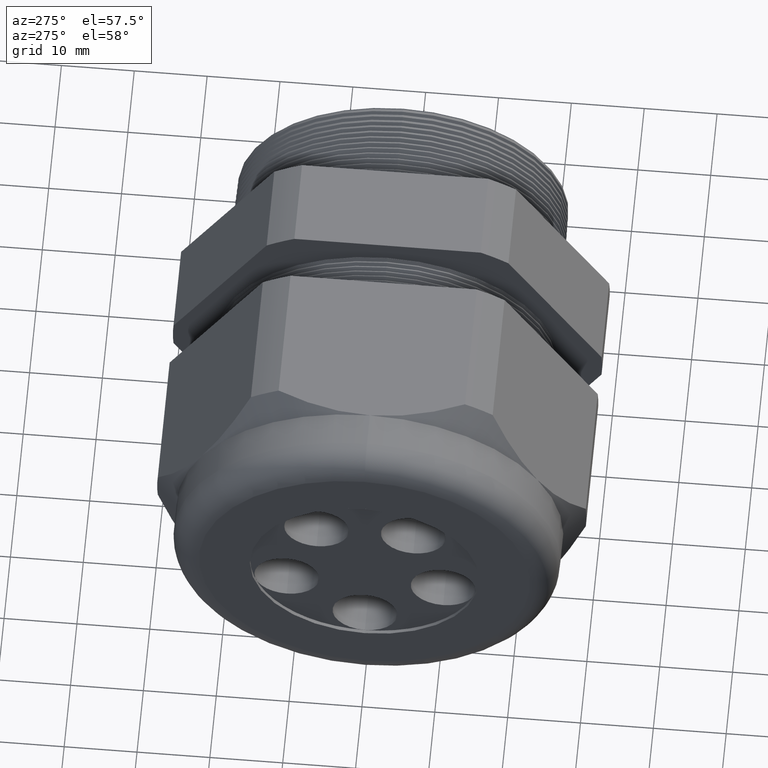
[diagram: clean part render]
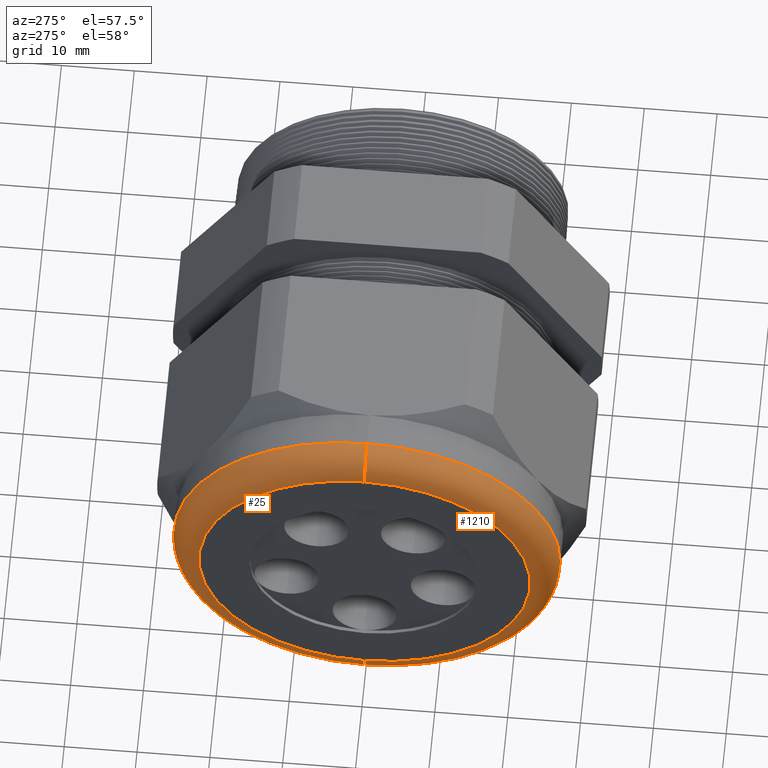
[diagram: same view with one multi-face feature highlighted, each face labeled with its STEP entity id]
A machine part, auxiliary view. The highlighted faces form ONE feature: a constant-radius fillet chain: 2 tangent blend faces with common blend radius 3.81 mm. The faces share edges in the B-rep.
Their STEP definitions:
[1] entity #25 (Torus):
#1 = VERTEX_POINT ( 'NONE', #1517 ) ;
#2 = ORIENTED_EDGE ( 'NONE', *, *, #6, .F. ) ;
#3 = ORIENTED_EDGE ( 'NONE', *, *, #5, .T. ) ;
#5 = EDGE_CURVE ( 'NONE', #7, #8, #1582, .T. ) ;
#6 = EDGE_CURVE ( 'NONE', #7, #11, #1577, .T. ) ;
#7 = VERTEX_POINT ( 'NONE', #1572 ) ;
#8 = VERTEX_POINT ( 'NONE', #1571 ) ;
#9 = ORIENTED_EDGE ( 'NONE', *, *, #17, .F. ) ;
#11 = VERTEX_POINT ( 'NONE', #1570 ) ;
#17 = EDGE_CURVE ( 'NONE', #1, #8, #1554, .T. ) ;
#21 = EDGE_LOOP ( 'NONE', ( #2, #3, #9, #42 ) ) ;
#25 = ADVANCED_FACE ( 'NONE', ( #1602 ), #1601, .T. ) ;
#41 = EDGE_CURVE ( 'NONE', #11, #1, #1629, .T. ) ;
#42 = ORIENTED_EDGE ( 'NONE', *, *, #41, .F. ) ;
#1517 = CARTESIAN_POINT ( 'NONE',  ( -2.199999999999999300, 0.0000000000000000000, 0.8949999999999999100 ) ) ;
#1551 = DIRECTION ( 'NONE',  ( -1.000000000000000000, 0.0000000000000000000, 0.0000000000000000000 ) ) ;
#1552 = CARTESIAN_POINT ( 'NONE',  ( -2.199999999999999300, 0.0000000000000000000, 0.0000000000000000000 ) ) ;
#1553 = AXIS2_PLACEMENT_3D ( 'NONE', #1552, #1551, #1612 ) ;
#1554 = CIRCLE ( 'NONE', #1553, 0.8949999999999999100 ) ;
#1570 = CARTESIAN_POINT ( 'NONE',  ( -2.049999999999999400, 1.279755905108984100E-016, 1.044999999999999900 ) ) ;
#1571 = CARTESIAN_POINT ( 'NONE',  ( -2.199999999999999300, 1.187907395172932400E-016, -0.8949999999999999100 ) ) ;
#1572 = CARTESIAN_POINT ( 'NONE',  ( -2.049999999999999400, 0.0000000000000000000, -1.044999999999999900 ) ) ;
#1573 = DIRECTION ( 'NONE',  ( 0.0000000000000000000, 0.0000000000000000000, 1.000000000000000000 ) ) ;
#1574 = DIRECTION ( 'NONE',  ( 1.000000000000000000, 0.0000000000000000000, 0.0000000000000000000 ) ) ;
#1575 = CARTESIAN_POINT ( 'NONE',  ( -2.049999999999999400, 0.0000000000000000000, 0.0000000000000000000 ) ) ;
#1576 = AXIS2_PLACEMENT_3D ( 'NONE', #1575, #1574, #1573 ) ;
#1577 = CIRCLE ( 'NONE', #1576, 1.044999999999999900 ) ;
#1578 = DIRECTION ( 'NONE',  ( 0.0000000000000000000, -1.224646799147352500E-016, 1.000000000000000000 ) ) ;
#1579 = DIRECTION ( 'NONE',  ( 0.0000000000000000000, 1.000000000000000000, 1.224646799147353200E-016 ) ) ;
#1580 = CARTESIAN_POINT ( 'NONE',  ( -2.049999999999999400, 1.096058885236880900E-016, -0.8949999999999999100 ) ) ;
#1581 = AXIS2_PLACEMENT_3D ( 'NONE', #1580, #1579, #1578 ) ;
#1582 = CIRCLE ( 'NONE', #1581, 0.1500000000000000500 ) ;
#1597 = DIRECTION ( 'NONE',  ( 0.0000000000000000000, 0.0000000000000000000, 1.000000000000000000 ) ) ;
#1598 = DIRECTION ( 'NONE',  ( -1.000000000000000000, 0.0000000000000000000, 0.0000000000000000000 ) ) ;
#1599 = CARTESIAN_POINT ( 'NONE',  ( -2.049999999999999400, 0.0000000000000000000, 0.0000000000000000000 ) ) ;
#1600 = AXIS2_PLACEMENT_3D ( 'NONE', #1599, #1598, #1597 ) ;
#1601 = TOROIDAL_SURFACE ( 'NONE', #1600, 0.8949999999999999100, 0.1499999999999999900 ) ;
#1602 = FACE_OUTER_BOUND ( 'NONE', #21, .T. ) ;
#1612 = DIRECTION ( 'NONE',  ( 0.0000000000000000000, 0.0000000000000000000, 1.000000000000000000 ) ) ;
#1626 = DIRECTION ( 'NONE',  ( 0.0000000000000000000, 0.0000000000000000000, -1.000000000000000000 ) ) ;
#1627 = DIRECTION ( 'NONE',  ( 0.0000000000000000000, -1.000000000000000000, 0.0000000000000000000 ) ) ;
#1628 = AXIS2_PLACEMENT_3D ( 'NONE', #1634, #1627, #1626 ) ;
#1629 = CIRCLE ( 'NONE', #1628, 0.1500000000000000500 ) ;
#1634 = CARTESIAN_POINT ( 'NONE',  ( -2.049999999999999400, 0.0000000000000000000, 0.8949999999999999100 ) ) ;
[2] entity #1210 (Torus):
#1 = VERTEX_POINT ( 'NONE', #1517 ) ;
#5 = EDGE_CURVE ( 'NONE', #7, #8, #1582, .T. ) ;
#7 = VERTEX_POINT ( 'NONE', #1572 ) ;
#8 = VERTEX_POINT ( 'NONE', #1571 ) ;
#11 = VERTEX_POINT ( 'NONE', #1570 ) ;
#41 = EDGE_CURVE ( 'NONE', #11, #1, #1629, .T. ) ;
#812 = EDGE_CURVE ( 'NONE', #11, #7, #3175, .T. ) ;
#825 = EDGE_CURVE ( 'NONE', #8, #1, #3209, .T. ) ;
#1210 = ADVANCED_FACE ( 'NONE', ( #3802 ), #3801, .T. ) ;
#1211 = EDGE_LOOP ( 'NONE', ( #1212, #1213, #1214, #1215 ) ) ;
#1212 = ORIENTED_EDGE ( 'NONE', *, *, #5, .F. ) ;
#1213 = ORIENTED_EDGE ( 'NONE', *, *, #812, .F. ) ;
#1214 = ORIENTED_EDGE ( 'NONE', *, *, #41, .T. ) ;
#1215 = ORIENTED_EDGE ( 'NONE', *, *, #825, .F. ) ;
#1517 = CARTESIAN_POINT ( 'NONE',  ( -2.199999999999999300, 0.0000000000000000000, 0.8949999999999999100 ) ) ;
#1570 = CARTESIAN_POINT ( 'NONE',  ( -2.049999999999999400, 1.279755905108984100E-016, 1.044999999999999900 ) ) ;
#1571 = CARTESIAN_POINT ( 'NONE',  ( -2.199999999999999300, 1.187907395172932400E-016, -0.8949999999999999100 ) ) ;
#1572 = CARTESIAN_POINT ( 'NONE',  ( -2.049999999999999400, 0.0000000000000000000, -1.044999999999999900 ) ) ;
#1578 = DIRECTION ( 'NONE',  ( 0.0000000000000000000, -1.224646799147352500E-016, 1.000000000000000000 ) ) ;
#1579 = DIRECTION ( 'NONE',  ( 0.0000000000000000000, 1.000000000000000000, 1.224646799147353200E-016 ) ) ;
#1580 = CARTESIAN_POINT ( 'NONE',  ( -2.049999999999999400, 1.096058885236880900E-016, -0.8949999999999999100 ) ) ;
#1581 = AXIS2_PLACEMENT_3D ( 'NONE', #1580, #1579, #1578 ) ;
#1582 = CIRCLE ( 'NONE', #1581, 0.1500000000000000500 ) ;
#1626 = DIRECTION ( 'NONE',  ( 0.0000000000000000000, 0.0000000000000000000, -1.000000000000000000 ) ) ;
#1627 = DIRECTION ( 'NONE',  ( 0.0000000000000000000, -1.000000000000000000, 0.0000000000000000000 ) ) ;
#1628 = AXIS2_PLACEMENT_3D ( 'NONE', #1634, #1627, #1626 ) ;
#1629 = CIRCLE ( 'NONE', #1628, 0.1500000000000000500 ) ;
#1634 = CARTESIAN_POINT ( 'NONE',  ( -2.049999999999999400, 0.0000000000000000000, 0.8949999999999999100 ) ) ;
#3171 = DIRECTION ( 'NONE',  ( 0.0000000000000000000, 0.0000000000000000000, 1.000000000000000000 ) ) ;
#3172 = DIRECTION ( 'NONE',  ( 1.000000000000000000, 0.0000000000000000000, 0.0000000000000000000 ) ) ;
#3173 = CARTESIAN_POINT ( 'NONE',  ( -2.049999999999999400, 0.0000000000000000000, 0.0000000000000000000 ) ) ;
#3174 = AXIS2_PLACEMENT_3D ( 'NONE', #3173, #3172, #3171 ) ;
#3175 = CIRCLE ( 'NONE', #3174, 1.044999999999999900 ) ;
#3206 = DIRECTION ( 'NONE',  ( 0.0000000000000000000, 0.0000000000000000000, 1.000000000000000000 ) ) ;
#3207 = DIRECTION ( 'NONE',  ( -1.000000000000000000, 0.0000000000000000000, 0.0000000000000000000 ) ) ;
#3208 = AXIS2_PLACEMENT_3D ( 'NONE', #3214, #3207, #3206 ) ;
#3209 = CIRCLE ( 'NONE', #3208, 0.8949999999999999100 ) ;
#3214 = CARTESIAN_POINT ( 'NONE',  ( -2.199999999999999300, 0.0000000000000000000, 0.0000000000000000000 ) ) ;
#3796 = DIRECTION ( 'NONE',  ( 0.0000000000000000000, 0.0000000000000000000, 1.000000000000000000 ) ) ;
#3797 = DIRECTION ( 'NONE',  ( -1.000000000000000000, 0.0000000000000000000, 0.0000000000000000000 ) ) ;
#3798 = CARTESIAN_POINT ( 'NONE',  ( -2.049999999999999400, 0.0000000000000000000, 0.0000000000000000000 ) ) ;
#3799 = AXIS2_PLACEMENT_3D ( 'NONE', #3798, #3797, #3796 ) ;
#3801 = TOROIDAL_SURFACE ( 'NONE', #3799, 0.8949999999999999100, 0.1499999999999999900 ) ;
#3802 = FACE_OUTER_BOUND ( 'NONE', #1211, .T. ) ;